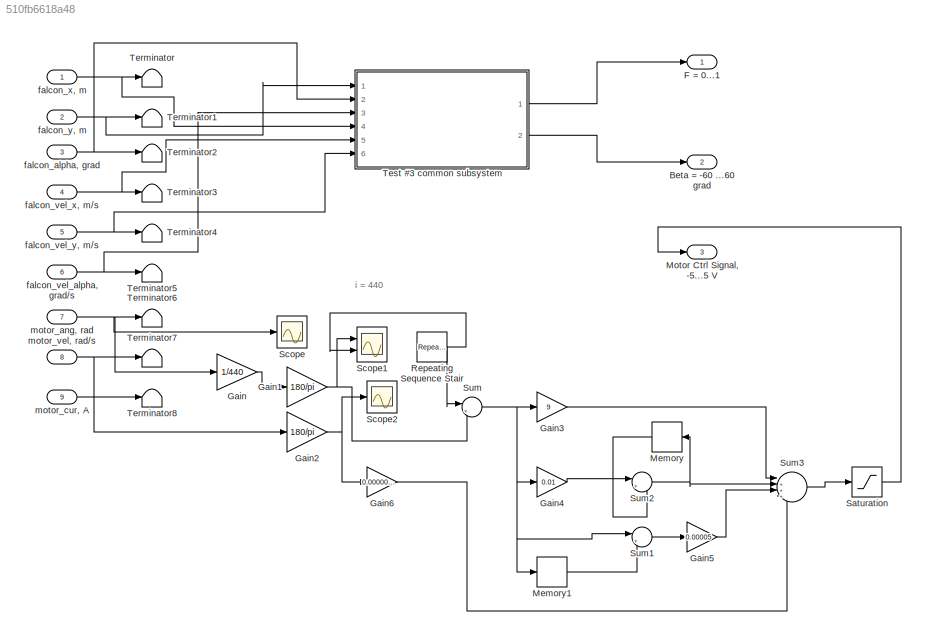
MODEL slx_510fb6618a48
KIND model
CONFIG AbsTol = auto
CONFIG EnableMultiTasking = on
CONFIG FixedStep = auto
CONFIG MaxStep = auto
CONFIG MinStep = auto
CONFIG RelTol = 1e-3
CONFIG SampleTimeConstraint = Unconstrained
CONFIG Solver = VariableStepAuto
CONFIG SolverName = VariableStepAuto
CONFIG StartTime = 0.0
CONFIG StopTime = 100
BLOCK [Outport] Beta = -60 ...60 grad
  OutDataTypeStr = double
  Port = 2
  PortDimensions = 1
  SampleTime = [0.01,0]
  SamplingMode = Sample based
  SignalType = real
  VectorParamsAs1DForOutWhenUnconnected = off
BLOCK [Outport] F = 0...1
  OutDataTypeStr = double
  PortDimensions = 1
  SampleTime = [0.01,0]
  SamplingMode = Sample based
  SignalType = real
  VectorParamsAs1DForOutWhenUnconnected = off
BLOCK [Gain] Gain
  Gain = 1/440
BLOCK [Gain] Gain1
  Gain = 180/pi
BLOCK [Gain] Gain2
  Gain = 180/pi
BLOCK [Gain] Gain3
  Gain = 9
BLOCK [Gain] Gain4
  Gain = 0.01
BLOCK [Gain] Gain5
  Gain = 0.00005
BLOCK [Gain] Gain6
  Gain = 0.0000001
BLOCK [Memory] Memory
BLOCK [Memory] Memory1
BLOCK [Outport] Motor Ctrl Signal, -5...5 V
  OutDataTypeStr = double
  Port = 3
  PortDimensions = 1
  SampleTime = [0,1]
  SamplingMode = Sample based
  SignalType = real
  VectorParamsAs1DForOutWhenUnconnected = off
BLOCK [Reference] Repeating Sequence Stair  REF=simulink/Sources/Repeating
Sequence
Stair
  Ports = [0, 1]
  SourceBlock = simulink/Sources/Repeating\nSequence\nStair
  SourceProductBaseCode = SL
  SourceType = Repeating Sequence Stair
BLOCK [Saturate] Saturation
  LowerLimit = -5
  UpperLimit = 5
BLOCK [Scope] Scope
  Floating = off
  NumInputPorts = 1
  Ports = [1]
  ScopeSpecificationString = Simulink.scopes.TimeScopeBlockCfg('CurrentConfiguration', extmgr.ConfigurationSet(extmgr.Configuration('Core','General UI',true),extmgr.Configuration('Core','Source UI',true),extmgr.Configuration('Sources','WiredSimulink',true,'DataLoggingVariableName','ScopeData1'),extmgr.Configuration('Visuals','Time Domain',true,'SerializedDisplays',{struct('MinYLimReal','-172.7876','MaxYLimReal','1555.08844','...<+1463ch>
BLOCK [Scope] Scope1
  Floating = off
  NumInputPorts = 2
  Ports = [2]
  ScopeSpecificationString = Simulink.scopes.TimeScopeBlockCfg('CurrentConfiguration', extmgr.ConfigurationSet(extmgr.Configuration('Core','General UI',true),extmgr.Configuration('Core','Source UI',true),extmgr.Configuration('Sources','WiredSimulink',true,'DataLoggingVariableName','ScopeData2'),extmgr.Configuration('Visuals','Time Domain',true,'SerializedDisplays',{struct('MinYLimReal','0','MaxYLimReal','500','YLabelReal','',...<+1451ch>
BLOCK [Scope] Scope2
  Floating = off
  NumInputPorts = 1
  Ports = [1]
  ScopeSpecificationString = Simulink.scopes.TimeScopeBlockCfg('CurrentConfiguration', extmgr.ConfigurationSet(extmgr.Configuration('Core','General UI',true),extmgr.Configuration('Core','Source UI',true),extmgr.Configuration('Sources','WiredSimulink',true),extmgr.Configuration('Visuals','Time Domain',true,'SerializedDisplays',{struct('MinYLimReal','-1200','MaxYLimReal','10000','YLabelReal','','MinYLimMag',' 0.00000','MaxYLimM...<+1396ch>
BLOCK [Sum] Sum
  Inputs = |+-
  Ports = [2, 1]
BLOCK [Sum] Sum1
  Inputs = |+-
  Ports = [2, 1]
BLOCK [Sum] Sum2
  Inputs = |++
  NameLocation = top
  Ports = [2, 1]
BLOCK [Sum] Sum3
  Inputs = |+++-
  NameLocation = top
  Ports = [4, 1]
BLOCK [Terminator] Terminator
BLOCK [Terminator] Terminator1
BLOCK [Terminator] Terminator2
BLOCK [Terminator] Terminator3
BLOCK [Terminator] Terminator4
BLOCK [Terminator] Terminator5
BLOCK [Terminator] Terminator6
BLOCK [Terminator] Terminator7
BLOCK [Terminator] Terminator8
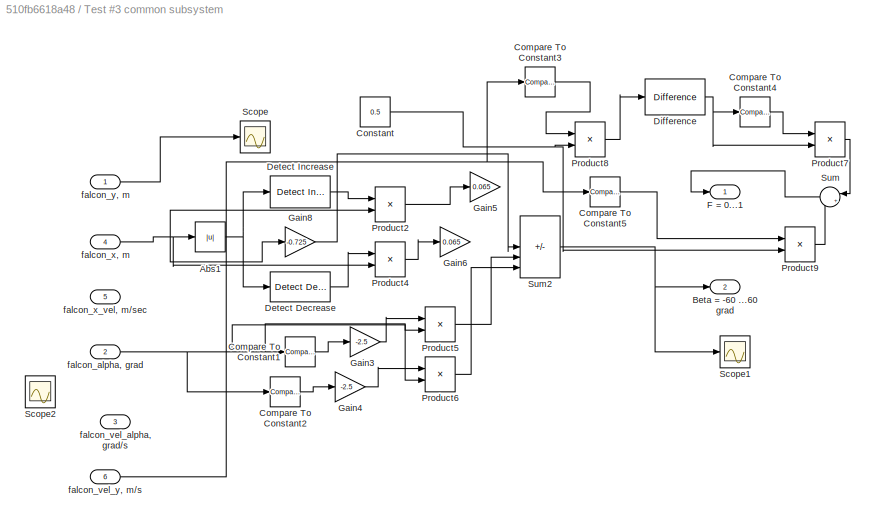
BLOCK [SubSystem] Test #3 common subsystem
  Ports = [6, 2]
  RequestExecContextInheritance = off
BLOCK [Abs] Test #3 common subsystem/Abs1
  SaturateOnIntegerOverflow = off
BLOCK [Outport] Test #3 common subsystem/Beta = -60 ...60 grad
  Port = 2
  VectorParamsAs1DForOutWhenUnconnected = off
BLOCK [Reference] Test #3 common subsystem/Compare To Constant1  REF=simulink/Logic and Bit
Operations/Compare
To Constant
  Ports = [1, 1]
  SourceBlock = simulink/Logic and Bit\nOperations/Compare\nTo Constant
  SourceProductBaseCode = SL
  SourceType = Compare To Constant
BLOCK [Reference] Test #3 common subsystem/Compare To Constant2  REF=simulink/Logic and Bit
Operations/Compare
To Constant
  Ports = [1, 1]
  SourceBlock = simulink/Logic and Bit\nOperations/Compare\nTo Constant
  SourceProductBaseCode = SL
  SourceType = Compare To Constant
BLOCK [Reference] Test #3 common subsystem/Compare To Constant3  REF=simulink/Logic and Bit
Operations/Compare
To Constant
  Ports = [1, 1]
  SourceBlock = simulink/Logic and Bit\nOperations/Compare\nTo Constant
  SourceProductBaseCode = SL
  SourceType = Compare To Constant
BLOCK [Reference] Test #3 common subsystem/Compare To Constant4  REF=simulink/Logic and Bit
Operations/Compare
To Constant
  Ports = [1, 1]
  SourceBlock = simulink/Logic and Bit\nOperations/Compare\nTo Constant
  SourceProductBaseCode = SL
  SourceType = Compare To Constant
BLOCK [Reference] Test #3 common subsystem/Compare To Constant5  REF=simulink/Logic and Bit
Operations/Compare
To Constant
  Ports = [1, 1]
  SourceBlock = simulink/Logic and Bit\nOperations/Compare\nTo Constant
  SourceProductBaseCode = SL
  SourceType = Compare To Constant
BLOCK [Constant] Test #3 common subsystem/Constant
  Value = 0.5
BLOCK [Reference] Test #3 common subsystem/Detect Decrease  REF=simulink/Logic and Bit
Operations/Detect
Decrease
  Ports = [1, 1]
  SourceBlock = simulink/Logic and Bit\nOperations/Detect\nDecrease
  SourceProductBaseCode = SL
  SourceType = Detect Decrease
BLOCK [Reference] Test #3 common subsystem/Detect Increase  REF=simulink/Logic and Bit
Operations/Detect
Increase
  Ports = [1, 1]
  SourceBlock = simulink/Logic and Bit\nOperations/Detect\nIncrease
  SourceProductBaseCode = SL
  SourceType = Detect Increase
BLOCK [Reference] Test #3 common subsystem/Difference  REF=simulink/Discrete/Difference
  Ports = [1, 1]
  SourceBlock = simulink/Discrete/Difference
  SourceProductBaseCode = SL
  SourceType = Difference
BLOCK [Outport] Test #3 common subsystem/F = 0...1
  VectorParamsAs1DForOutWhenUnconnected = off
BLOCK [Gain] Test #3 common subsystem/Gain3
  Gain = -2.5
BLOCK [Gain] Test #3 common subsystem/Gain4
  Gain = -2.5
BLOCK [Gain] Test #3 common subsystem/Gain5
  Gain = 0.065
BLOCK [Gain] Test #3 common subsystem/Gain6
  Gain = 0.065
BLOCK [Gain] Test #3 common subsystem/Gain8
  Gain = -0.725
BLOCK [Product] Test #3 common subsystem/Product2
  Ports = [2, 1]
BLOCK [Product] Test #3 common subsystem/Product4
  Ports = [2, 1]
BLOCK [Product] Test #3 common subsystem/Product5
  Ports = [2, 1]
BLOCK [Product] Test #3 common subsystem/Product6
  Ports = [2, 1]
BLOCK [Product] Test #3 common subsystem/Product7
  Ports = [2, 1]
BLOCK [Product] Test #3 common subsystem/Product8
  Ports = [2, 1]
BLOCK [Product] Test #3 common subsystem/Product9
  Ports = [2, 1]
BLOCK [Scope] Test #3 common subsystem/Scope
  Floating = off
  NumInputPorts = 1
  Ports = [1]
  ScopeSpecificationString = Simulink.scopes.TimeScopeBlockCfg('CurrentConfiguration', extmgr.ConfigurationSet(extmgr.Configuration('Core','General UI',true),extmgr.Configuration('Core','Source UI',true),extmgr.Configuration('Sources','WiredSimulink',true,'DataLoggingVariableName','ScopeData3'),extmgr.Configuration('Visuals','Time Domain',true,'SerializedDisplays',{struct('MinYLimReal','0','MaxYLimReal','400','YLabelReal','',...<+1401ch>
BLOCK [Scope] Test #3 common subsystem/Scope1
  Floating = off
  NumInputPorts = 1
  Ports = [1]
  ScopeSpecificationString = Simulink.scopes.TimeScopeBlockCfg('CurrentConfiguration', extmgr.ConfigurationSet(extmgr.Configuration('Core','General UI',true),extmgr.Configuration('Core','Source UI',true),extmgr.Configuration('Sources','WiredSimulink',true,'DataLoggingVariableName','ScopeData4'),extmgr.Configuration('Visuals','Time Domain',true,'SerializedDisplays',{struct('MinYLimReal','-60','MaxYLimReal','60','YLabelReal',''...<+1396ch>
BLOCK [Scope] Test #3 common subsystem/Scope2
  Floating = off
  NumInputPorts = 1
  Ports = [1]
  ScopeSpecificationString = Simulink.scopes.TimeScopeBlockCfg('CurrentConfiguration', extmgr.ConfigurationSet(extmgr.Configuration('Core','General UI',true),extmgr.Configuration('Core','Source UI',true),extmgr.Configuration('Sources','WiredSimulink',true,'DataLoggingVariableName','ScopeData5'),extmgr.Configuration('Visuals','Time Domain',true,'SerializedDisplays',{struct('MinYLimReal','-100','MaxYLimReal','100','YLabelReal',...<+1440ch>
BLOCK [Sum] Test #3 common subsystem/Sum
  Inputs = |++
  Ports = [2, 1]
BLOCK [Sum] Test #3 common subsystem/Sum2
  IconShape = rectangular
  Inputs = |++-++
  Ports = [5, 1]
BLOCK [Inport] Test #3 common subsystem/falcon_alpha, grad
  Port = 2
BLOCK [Inport] Test #3 common subsystem/falcon_vel_alpha, grad//s
  Port = 3
BLOCK [Inport] Test #3 common subsystem/falcon_vel_y, m//s
  Port = 6
BLOCK [Inport] Test #3 common subsystem/falcon_x, m
  Port = 4
BLOCK [Inport] Test #3 common subsystem/falcon_x_vel, m//sec
  Port = 5
BLOCK [Inport] Test #3 common subsystem/falcon_y, m
BLOCK [Inport] falcon_alpha, grad
  OutDataTypeStr = double
  Port = 3
  PortDimensions = 1
  SampleTime = [0.01,0]
  SamplingMode = Sample based
  SignalType = real
BLOCK [Inport] falcon_vel_alpha, grad//s
  OutDataTypeStr = double
  Port = 6
  PortDimensions = 1
  SampleTime = [0.01,0]
  SamplingMode = Sample based
  SignalType = real
BLOCK [Inport] falcon_vel_x, m//s
  OutDataTypeStr = double
  Port = 4
  PortDimensions = 1
  SampleTime = [0.01,0]
  SamplingMode = Sample based
  SignalType = real
BLOCK [Inport] falcon_vel_y, m//s
  OutDataTypeStr = double
  Port = 5
  PortDimensions = 1
  SampleTime = [0.01,0]
  SamplingMode = Sample based
  SignalType = real
BLOCK [Inport] falcon_x, m
  OutDataTypeStr = double
  PortDimensions = 1
  SampleTime = [0.01,0]
  SamplingMode = Sample based
  SignalType = real
BLOCK [Inport] falcon_y, m
  OutDataTypeStr = double
  Port = 2
  PortDimensions = 1
  SampleTime = [0.01,0]
  SamplingMode = Sample based
  SignalType = real
BLOCK [Inport] motor_ang, rad
  OutDataTypeStr = double
  Port = 7
  PortDimensions = 1
  SampleTime = [0.01,0]
  SamplingMode = Sample based
  SignalType = real
BLOCK [Inport] motor_cur, A
  OutDataTypeStr = double
  Port = 9
  PortDimensions = 1
  SampleTime = [0.01,0]
  SamplingMode = Sample based
  SignalType = real
BLOCK [Inport] motor_vel, rad//s
  OutDataTypeStr = double
  Port = 8
  PortDimensions = 1
  SampleTime = [0.01,0]
  SamplingMode = Sample based
  SignalType = real
ANNOTATION (root): i = 440
NET Gain1:1 -> Scope1:1, Sum:2
NET Gain2:1 -> Gain6:1, Scope2:1
LINE Gain3:1 -> Sum3:1
LINE Gain4:1 -> Sum2:1
LINE Gain5:1 -> Sum3:3
LINE Gain6:1 -> Sum3:4
LINE Gain:1 -> Gain1:1
LINE Memory1:1 -> Sum1:2
LINE Memory:1 -> Sum2:2
NET Repeating Sequence Stair:1 -> Scope1:2, Sum:1
LINE Saturation:1 -> Motor Ctrl Signal, -5...5 V:1
LINE Sum1:1 -> Gain5:1
NET Sum2:1 -> Memory:1, Sum3:2
LINE Sum3:1 -> Saturation:1
NET Sum:1 -> Gain3:1, Gain4:1, Memory1:1, Sum1:1
NET Test #3 common subsystem/Abs1:1 -> Test #3 common subsystem/Detect Decrease:1, Test #3 common subsystem/Detect Increase:1
LINE Test #3 common subsystem/Compare To Constant1:1 -> Test #3 common subsystem/Gain3:1
LINE Test #3 common subsystem/Compare To Constant2:1 -> Test #3 common subsystem/Gain4:1
LINE Test #3 common subsystem/Compare To Constant3:1 -> Test #3 common subsystem/Product8:1
LINE Test #3 common subsystem/Compare To Constant4:1 -> Test #3 common subsystem/Product7:1
LINE Test #3 common subsystem/Compare To Constant5:1 -> Test #3 common subsystem/Product9:1
NET Test #3 common subsystem/Constant:1 -> Test #3 common subsystem/Product8:2, Test #3 common subsystem/Product9:2
LINE Test #3 common subsystem/Detect Decrease:1 -> Test #3 common subsystem/Product4:1
LINE Test #3 common subsystem/Detect Increase:1 -> Test #3 common subsystem/Product2:1
NET Test #3 common subsystem/Difference:1 -> Test #3 common subsystem/Compare To Constant4:1, Test #3 common subsystem/Product7:2
LINE Test #3 common subsystem/Gain3:1 -> Test #3 common subsystem/Product5:1
LINE Test #3 common subsystem/Gain4:1 -> Test #3 common subsystem/Product6:1
LINE Test #3 common subsystem/Gain8:1 -> Test #3 common subsystem/Sum2:3
LINE Test #3 common subsystem/Product2:1 -> Test #3 common subsystem/Gain5:1
LINE Test #3 common subsystem/Product4:1 -> Test #3 common subsystem/Gain6:1
LINE Test #3 common subsystem/Product5:1 -> Test #3 common subsystem/Sum2:4
LINE Test #3 common subsystem/Product6:1 -> Test #3 common subsystem/Sum2:5
LINE Test #3 common subsystem/Product7:1 -> Test #3 common subsystem/Sum:1
LINE Test #3 common subsystem/Product8:1 -> Test #3 common subsystem/Difference:1
LINE Test #3 common subsystem/Product9:1 -> Test #3 common subsystem/Sum:2
NET Test #3 common subsystem/Sum2:1 -> Test #3 common subsystem/Beta = -60 ...60 grad:1, Test #3 common subsystem/Scope1:1
LINE Test #3 common subsystem/Sum:1 -> Test #3 common subsystem/F = 0...1:1
NET Test #3 common subsystem/falcon_alpha, grad:1 -> Test #3 common subsystem/Compare To Constant1:1, Test #3 common subsystem/Compare To Constant2:1, Test #3 common subsystem/Product5:2, Test #3 common subsystem/Product6:2
NET Test #3 common subsystem/falcon_vel_y, m//s:1 -> Test #3 common subsystem/Compare To Constant3:1, Test #3 common subsystem/Compare To Constant5:1
NET Test #3 common subsystem/falcon_x, m:1 -> Test #3 common subsystem/Abs1:1, Test #3 common subsystem/Gain8:1, Test #3 common subsystem/Product2:2, Test #3 common subsystem/Product4:2
LINE Test #3 common subsystem/falcon_y, m:1 -> Test #3 common subsystem/Scope:1
LINE Test #3 common subsystem:1 -> F = 0...1:1
LINE Test #3 common subsystem:2 -> Beta = -60 ...60 grad:1
NET falcon_alpha, grad:1 -> Terminator2:1, Test #3 common subsystem:2
NET falcon_vel_alpha, grad//s:1 -> Terminator5:1, Test #3 common subsystem:3
NET falcon_vel_x, m//s:1 -> Terminator3:1, Test #3 common subsystem:5
NET falcon_vel_y, m//s:1 -> Terminator4:1, Test #3 common subsystem:6
NET falcon_x, m:1 -> Terminator:1, Test #3 common subsystem:4
NET falcon_y, m:1 -> Terminator1:1, Test #3 common subsystem:1
NET motor_ang, rad:1 -> Gain:1, Scope:1, Terminator6:1
LINE motor_cur, A:1 -> Terminator8:1
NET motor_vel, rad//s:1 -> Gain2:1, Terminator7:1
note: NET lines group one-source signal fan-out (src -> all destinations, sorted); 1:1 wires keep LINE
